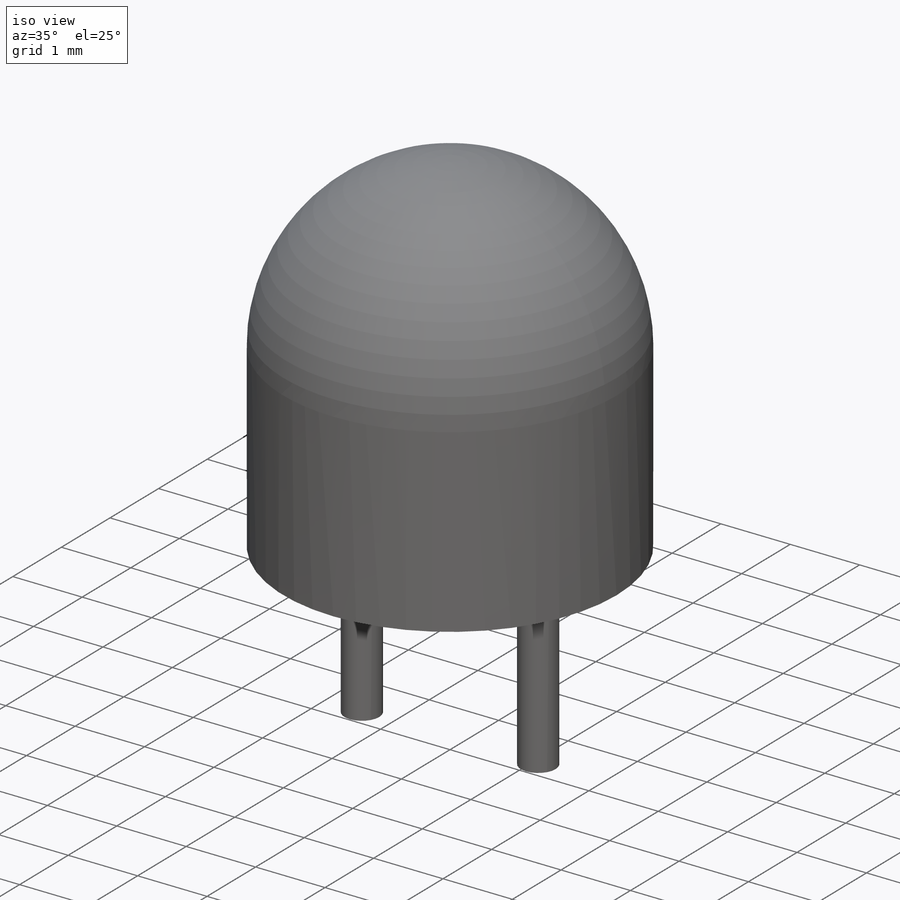
[diagram: iso view]
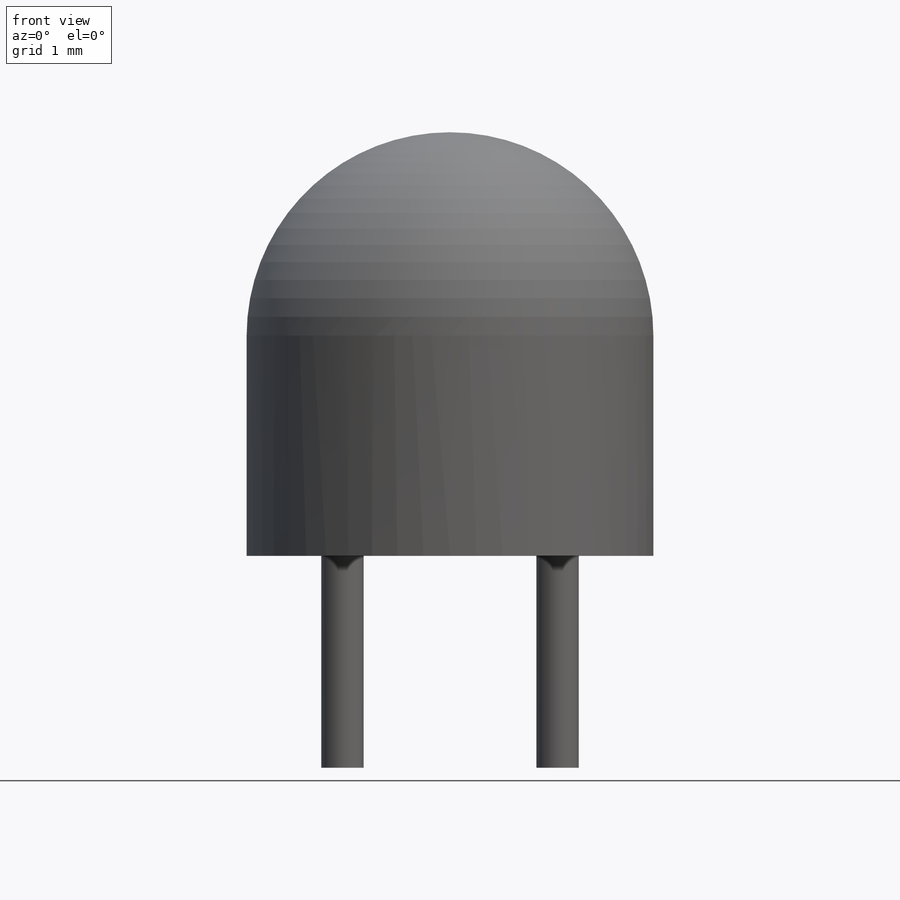
[diagram: front view]
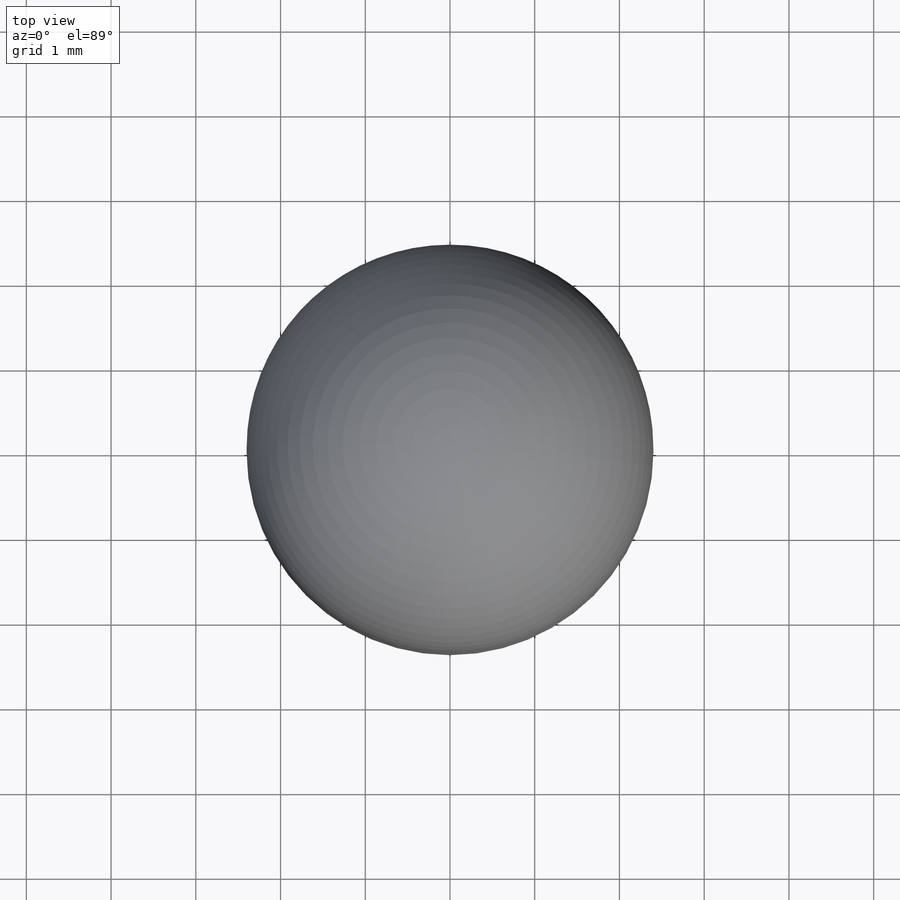
[diagram: top view]
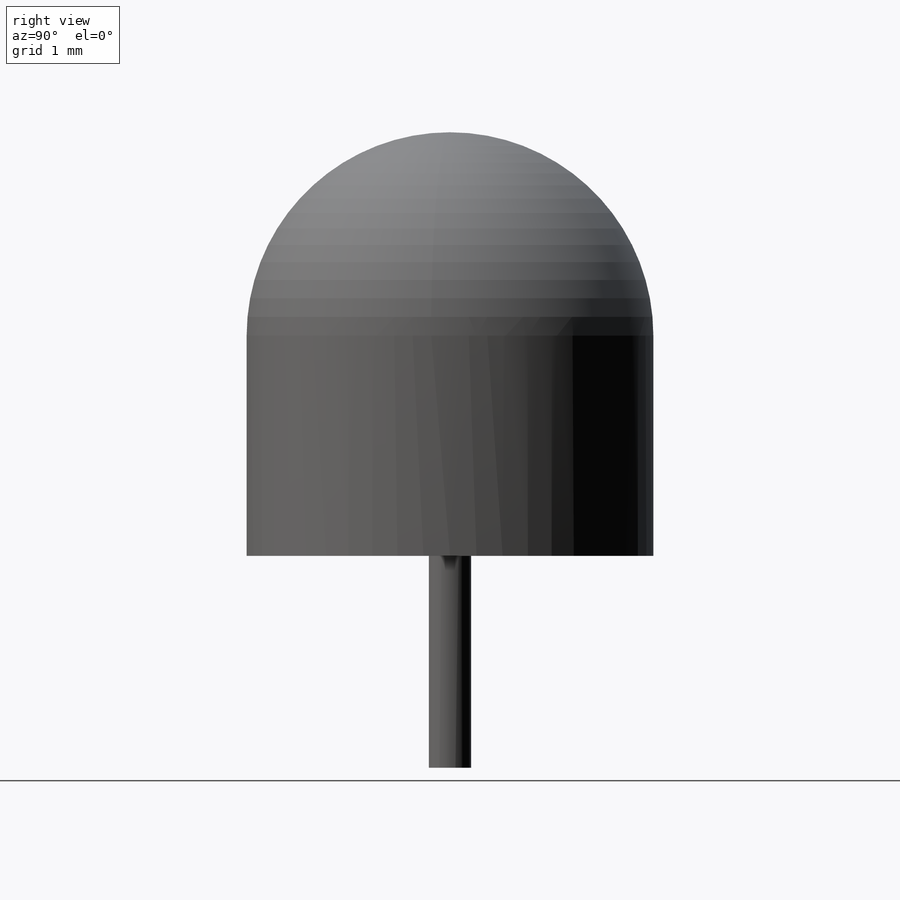
[diagram: right view]
SOLIDWORKS PART (.sldprt)
format: sldprt  version: not decoded by parser v0  size: 209,920 bytes
history: native  units: mm
features: sketch x4, plane x3, extrude x2, revolve x2, material x1 (+8 scaffold rows collapsed)
feature tree (20):
  scaffold x8  (default folders/planes/origin — collapsed)
  material  "Matériau <non spécifié>"
  plane  "Plan de face"
  plane  "Plan de dessus"
  plane  "Plan de droite"
  sketch  "Esquisse1"  dims[c1.D2=0.5mm c1.D1=2.54mm c2.D2=~4.315874mm]
  extrude  "Boss.-Extru.1"  Depth=2.5mm
  sketch  "Esquisse2"  dims[D1=3.0mm D2=1.3mm]
  extrude  "Boss.-Extru.2"  Depth=0.2mm
  sketch  "Esquisse4"  dims[D1=0.5mm]
  revolve  "Révolution1"  Angle=360deg
  sketch  "Esquisse5"  dims[D1=5.0mm D2=2.4mm]
  revolve  "Révolution2"  Angle=360deg
decode coverage: 8 of 8 modeling features carry decoded parameters
note: ~ marks probable driven/reference dimensions
note: suppression state not decoded; provenance and decode notes live in map.json
